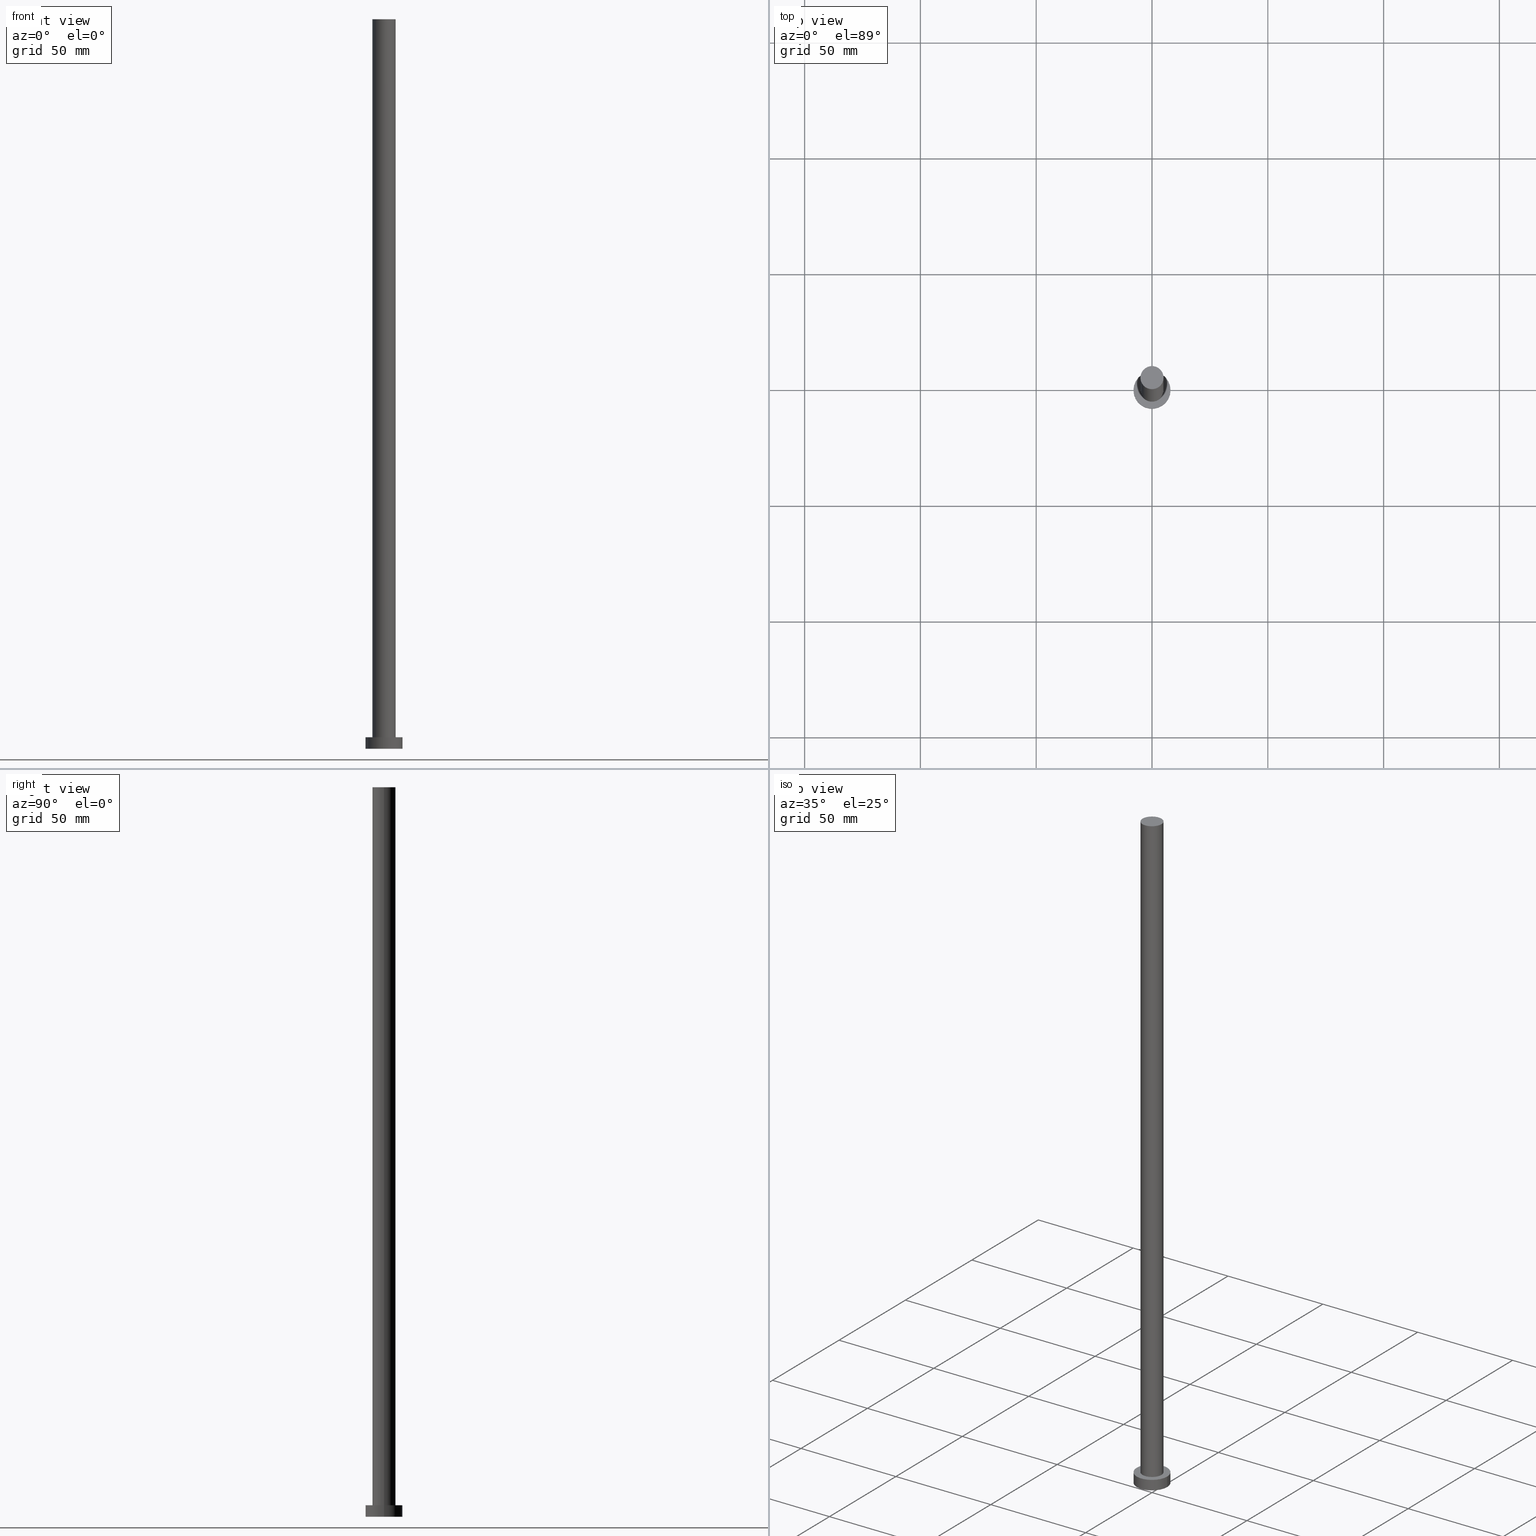
[diagram: canonical four-view strip — front | top / right | iso, engineering-drawing reading convention]
A machine part, canonical four-view strip (front | top / right | iso — engineering-drawing reading convention). The complete STEP part file that produces these views, byte-faithful:
ISO-10303-21;
HEADER;
FILE_DESCRIPTION (( 'STEP AP203' ),
    '1' );
FILE_NAME ('fd16.STEP',
    '2023-02-13T12:06:18',
    ( '' ),
    ( '' ),
    'SwSTEP 2.0',
    'SolidWorks 2019',
    '' );
FILE_SCHEMA (( 'CONFIG_CONTROL_DESIGN' ));
ENDSEC;

DATA;
#1 = PERSON_AND_ORGANIZATION ( #135, #162 ) ;
#2 = EDGE_CURVE ( 'NONE', #86, #115, #82, .T. ) ;
#3 = ORIENTED_EDGE ( 'NONE', *, *, #209, .F. ) ;
#4 = APPLICATION_PROTOCOL_DEFINITION ( 'international standard', 'config_control_design', 1994, #252 ) ;
#5 = APPROVAL_DATE_TIME ( #58, #99 ) ;
#6 = PRODUCT_DEFINITION ( 'NEZN�M�', '', #114, #123 ) ;
#7 = ORIENTED_EDGE ( 'NONE', *, *, #33, .T. ) ;
#8 = LOCAL_TIME ( 13, 6, 18.00000000000000000, #97 ) ;
#9 = ORIENTED_EDGE ( 'NONE', *, *, #235, .F. ) ;
#10 = FACE_BOUND ( 'NONE', #119, .T. ) ;
#11 = ORIENTED_EDGE ( 'NONE', *, *, #180, .T. ) ;
#12 = CC_DESIGN_APPROVAL ( #39, ( #68 ) ) ;
#13 = CYLINDRICAL_SURFACE ( 'NONE', #42, 8.000000000000000000 ) ;
#14 = LINE ( 'NONE', #90, #73 ) ;
#15 = APPROVAL_DATE_TIME ( #214, #39 ) ;
#16 = PRODUCT_RELATED_PRODUCT_CATEGORY ( 'detail', '', ( #230 ) ) ;
#17 = AXIS2_PLACEMENT_3D ( 'NONE', #62, #26, #145 ) ;
#18 = ORIENTED_EDGE ( 'NONE', *, *, #75, .F. ) ;
#19 = DATE_TIME_ROLE ( 'creation_date' ) ;
#20 = ORIENTED_EDGE ( 'NONE', *, *, #2, .T. ) ;
#21 = DATE_AND_TIME ( #238, #8 ) ;
#22 = EDGE_CURVE ( 'NONE', #215, #153, #176, .T. ) ;
#23 = CIRCLE ( 'NONE', #61, 8.000000000000000000 ) ;
#24 = UNCERTAINTY_MEASURE_WITH_UNIT (LENGTH_MEASURE( 1.000000000000000082E-05 ), #129, 'distance_accuracy_value', 'NONE');
#25 = ADVANCED_FACE ( 'NONE', ( #43 ), #244, .T. ) ;
#26 = DIRECTION ( 'NONE',  ( 0.000000000000000000, 0.000000000000000000, 1.000000000000000000 ) ) ;
#27 = APPROVAL_PERSON_ORGANIZATION ( #240, #39, #116 ) ;
#28 = DIRECTION ( 'NONE',  ( -0.000000000000000000, -0.000000000000000000, -1.000000000000000000 ) ) ;
#29 = ADVANCED_BREP_SHAPE_REPRESENTATION ( 'fd16', ( #236, #223 ), #121 ) ;
#30 = DIRECTION ( 'NONE',  ( 1.000000000000000000, 0.000000000000000000, 0.000000000000000000 ) ) ;
#31 = PLANE ( 'NONE',  #233 ) ;
#32 = CARTESIAN_POINT ( 'NONE',  ( 0.000000000000000000, 0.000000000000000000, 5.000000000000000000 ) ) ;
#33 = EDGE_CURVE ( 'NONE', #153, #157, #117, .T. ) ;
#34 = DIRECTION ( 'NONE',  ( -0.000000000000000000, -0.000000000000000000, -1.000000000000000000 ) ) ;
#35 = AXIS2_PLACEMENT_3D ( 'NONE', #113, #190, #131 ) ;
#36 = PERSON_AND_ORGANIZATION ( #135, #162 ) ;
#37 = EDGE_LOOP ( 'NONE', ( #65, #11, #156, #127 ) ) ;
#38 = PERSON_AND_ORGANIZATION ( #135, #162 ) ;
#39 = APPROVAL ( #95, 'NEUR�EN�' ) ;
#40 = DIRECTION ( 'NONE',  ( 0.000000000000000000, 0.000000000000000000, 1.000000000000000000 ) ) ;
#41 = PERSON_AND_ORGANIZATION ( #135, #162 ) ;
#42 = AXIS2_PLACEMENT_3D ( 'NONE', #32, #53, #167 ) ;
#43 = FACE_OUTER_BOUND ( 'NONE', #37, .T. ) ;
#44 = DIRECTION ( 'NONE',  ( -1.000000000000000000, 0.000000000000000000, 0.000000000000000000 ) ) ;
#45 = EDGE_CURVE ( 'NONE', #215, #64, #141, .T. ) ;
#46 = EDGE_LOOP ( 'NONE', ( #57, #134, #100, #7 ) ) ;
#47 = CARTESIAN_POINT ( 'NONE',  ( 0.000000000000000000, 0.000000000000000000, 5.000000000000000000 ) ) ;
#48 = MECHANICAL_CONTEXT ( 'NONE', #146, 'mechanical' ) ;
#49 = AXIS2_PLACEMENT_3D ( 'NONE', #149, #229, #50 ) ;
#50 = DIRECTION ( 'NONE',  ( 1.000000000000000000, 0.000000000000000000, 0.000000000000000000 ) ) ;
#51 = CARTESIAN_POINT ( 'NONE',  ( 0.000000000000000000, 0.000000000000000000, 0.000000000000000000 ) ) ;
#52 = ORIENTED_EDGE ( 'NONE', *, *, #76, .T. ) ;
#53 = DIRECTION ( 'NONE',  ( -0.000000000000000000, -0.000000000000000000, -1.000000000000000000 ) ) ;
#54 = AXIS2_PLACEMENT_3D ( 'NONE', #51, #112, #232 ) ;
#55 = LOCAL_TIME ( 13, 6, 18.00000000000000000, #60 ) ;
#56 = ORIENTED_EDGE ( 'NONE', *, *, #235, .T. ) ;
#57 = ORIENTED_EDGE ( 'NONE', *, *, #180, .F. ) ;
#58 = DATE_AND_TIME ( #101, #205 ) ;
#59 = DIRECTION ( 'NONE',  ( 0.000000000000000000, 0.000000000000000000, 1.000000000000000000 ) ) ;
#60 = COORDINATED_UNIVERSAL_TIME_OFFSET ( 1, 0, .AHEAD. ) ;
#61 = AXIS2_PLACEMENT_3D ( 'NONE', #161, #40, #30 ) ;
#62 = CARTESIAN_POINT ( 'NONE',  ( 0.000000000000000000, 0.000000000000000000, 0.000000000000000000 ) ) ;
#63 = ORIENTED_EDGE ( 'NONE', *, *, #92, .F. ) ;
#64 = VERTEX_POINT ( 'NONE', #126 ) ;
#65 = ORIENTED_EDGE ( 'NONE', *, *, #249, .F. ) ;
#66 = APPLICATION_PROTOCOL_DEFINITION ( 'international standard', 'config_control_design', 1994, #146 ) ;
#67 = DIRECTION ( 'NONE',  ( 0.000000000000000000, 0.000000000000000000, 1.000000000000000000 ) ) ;
#68 = SECURITY_CLASSIFICATION ( '', '', #213 ) ;
#69 = DIRECTION ( 'NONE',  ( 0.000000000000000000, 0.000000000000000000, 1.000000000000000000 ) ) ;
#70 = CARTESIAN_POINT ( 'NONE',  ( 0.000000000000000000, 0.000000000000000000, 315.0000000000000000 ) ) ;
#71 = CARTESIAN_POINT ( 'NONE',  ( 0.000000000000000000, 0.000000000000000000, 0.000000000000000000 ) ) ;
#72 = DATE_AND_TIME ( #177, #216 ) ;
#73 = VECTOR ( 'NONE', #34, 1000.000000000000000 ) ;
#74 = COORDINATED_UNIVERSAL_TIME_OFFSET ( 1, 0, .AHEAD. ) ;
#75 = EDGE_CURVE ( 'NONE', #157, #153, #102, .T. ) ;
#76 = EDGE_CURVE ( 'NONE', #115, #86, #23, .T. ) ;
#77 = PLANE ( 'NONE',  #204 ) ;
#78 = APPROVAL_DATE_TIME ( #72, #85 ) ;
#79 = AXIS2_PLACEMENT_3D ( 'NONE', #172, #69, #188 ) ;
#80 = DATE_TIME_ROLE ( 'classification_date' ) ;
#81 = ORIENTED_EDGE ( 'NONE', *, *, #249, .T. ) ;
#82 = CIRCLE ( 'NONE', #17, 8.000000000000000000 ) ;
#83 = LOCAL_TIME ( 13, 6, 18.00000000000000000, #159 ) ;
#84 = DIRECTION ( 'NONE',  ( 1.000000000000000000, 0.000000000000000000, -0.000000000000000000 ) ) ;
#85 = APPROVAL ( #160, 'NEUR�EN�' ) ;
#86 = VERTEX_POINT ( 'NONE', #184 ) ;
#87 = ORIENTED_EDGE ( 'NONE', *, *, #209, .T. ) ;
#88 = AXIS2_PLACEMENT_3D ( 'NONE', #220, #199, #44 ) ;
#89 = DIRECTION ( 'NONE',  ( 1.000000000000000000, 0.000000000000000000, 0.000000000000000000 ) ) ;
#90 = CARTESIAN_POINT ( 'NONE',  ( 5.000000000000000888, 6.123233995736767268E-16, 315.0000000000000000 ) ) ;
#91 = DIRECTION ( 'NONE',  ( 1.000000000000000000, 0.000000000000000000, -0.000000000000000000 ) ) ;
#92 = EDGE_CURVE ( 'NONE', #194, #86, #166, .T. ) ;
#93 = CARTESIAN_POINT ( 'NONE',  ( -5.000000000000000888, 0.000000000000000000, 315.0000000000000000 ) ) ;
#94 = ADVANCED_FACE ( 'NONE', ( #203 ), #217, .T. ) ;
#95 = APPROVAL_STATUS ( 'not_yet_approved' ) ;
#96 = CIRCLE ( 'NONE', #79, 8.000000000000000000 ) ;
#97 = COORDINATED_UNIVERSAL_TIME_OFFSET ( 1, 0, .AHEAD. ) ;
#98 = DIRECTION ( 'NONE',  ( 0.000000000000000000, 0.000000000000000000, 1.000000000000000000 ) ) ;
#99 = APPROVAL ( #136, 'NEUR�EN�' ) ;
#100 = ORIENTED_EDGE ( 'NONE', *, *, #22, .T. ) ;
#101 = CALENDAR_DATE ( 2023, 13, 2 ) ;
#102 = CIRCLE ( 'NONE', #173, 5.000000000000000888 ) ;
#103 = CC_DESIGN_APPROVAL ( #99, ( #114 ) ) ;
#104 = ADVANCED_FACE ( 'NONE', ( #10, #182 ), #77, .T. ) ;
#105 = CARTESIAN_POINT ( 'NONE',  ( 0.000000000000000000, 0.000000000000000000, 5.000000000000000000 ) ) ;
#106 = AXIS2_PLACEMENT_3D ( 'NONE', #47, #98, #147 ) ;
#107 = DIRECTION ( 'NONE',  ( -0.000000000000000000, -0.000000000000000000, -1.000000000000000000 ) ) ;
#108 = DIRECTION ( 'NONE',  ( -1.000000000000000000, 0.000000000000000000, 0.000000000000000000 ) ) ;
#109 = CARTESIAN_POINT ( 'NONE',  ( 8.000000000000000000, 9.797174393178825657E-16, 5.000000000000000000 ) ) ;
#110 = VECTOR ( 'NONE', #151, 1000.000000000000000 ) ;
#111 = CIRCLE ( 'NONE', #137, 8.000000000000000000 ) ;
#112 = DIRECTION ( 'NONE',  ( 0.000000000000000000, 0.000000000000000000, 1.000000000000000000 ) ) ;
#113 = CARTESIAN_POINT ( 'NONE',  ( 0.000000000000000000, 0.000000000000000000, 315.0000000000000000 ) ) ;
#114 = PRODUCT_DEFINITION_FORMATION_WITH_SPECIFIED_SOURCE ( 'LIBOVOLN�', '', #230, .NOT_KNOWN. ) ;
#115 = VERTEX_POINT ( 'NONE', #124 ) ;
#116 = APPROVAL_ROLE ( '' ) ;
#117 = CIRCLE ( 'NONE', #106, 5.000000000000000888 ) ;
#118 = PERSON_AND_ORGANIZATION ( #135, #162 ) ;
#119 = EDGE_LOOP ( 'NONE', ( #243, #18 ) ) ;
#120 = DATE_AND_TIME ( #195, #83 ) ;
#121 =( GEOMETRIC_REPRESENTATION_CONTEXT ( 3 ) GLOBAL_UNCERTAINTY_ASSIGNED_CONTEXT ( ( #24 ) ) GLOBAL_UNIT_ASSIGNED_CONTEXT ( ( #129, #150, #189 ) ) REPRESENTATION_CONTEXT ( 'NONE', 'WORKASPACE' ) );
#122 = ORIENTED_EDGE ( 'NONE', *, *, #2, .F. ) ;
#123 = DESIGN_CONTEXT ( 'detailed design', #252, 'design' ) ;
#124 = CARTESIAN_POINT ( 'NONE',  ( 8.000000000000000000, 9.797174393178825657E-16, 0.000000000000000000 ) ) ;
#125 = CC_DESIGN_PERSON_AND_ORGANIZATION_ASSIGNMENT ( #1, #191, ( #114 ) ) ;
#126 = CARTESIAN_POINT ( 'NONE',  ( 5.000000000000000888, 6.123233995736767268E-16, 315.0000000000000000 ) ) ;
#127 = ORIENTED_EDGE ( 'NONE', *, *, #22, .F. ) ;
#128 = CARTESIAN_POINT ( 'NONE',  ( -8.000000000000000000, 0.000000000000000000, 5.000000000000000000 ) ) ;
#129 =( LENGTH_UNIT ( ) NAMED_UNIT ( * ) SI_UNIT ( .MILLI., .METRE. ) );
#130 = EDGE_LOOP ( 'NONE', ( #122, #208 ) ) ;
#131 = DIRECTION ( 'NONE',  ( -1.000000000000000000, 0.000000000000000000, 0.000000000000000000 ) ) ;
#132 = CC_DESIGN_PERSON_AND_ORGANIZATION_ASSIGNMENT ( #255, #193, ( #114 ) ) ;
#133 = PERSON_AND_ORGANIZATION_ROLE ( 'design_owner' ) ;
#134 = ORIENTED_EDGE ( 'NONE', *, *, #45, .F. ) ;
#135 = PERSON ( 'NEUR�EN�', 'NEUR�EN�', 'NEUR�EN�', ('NEUR�EN�'), ('NEUR�EN�'), ('NEUR�EN�') ) ;
#136 = APPROVAL_STATUS ( 'not_yet_approved' ) ;
#137 = AXIS2_PLACEMENT_3D ( 'NONE', #210, #67, #89 ) ;
#138 = DIRECTION ( 'NONE',  ( 0.000000000000000000, 0.000000000000000000, 1.000000000000000000 ) ) ;
#139 = ADVANCED_FACE ( 'NONE', ( #165 ), #13, .T. ) ;
#140 = APPROVAL_ROLE ( '' ) ;
#141 = CIRCLE ( 'NONE', #211, 5.000000000000000888 ) ;
#142 = APPROVAL_PERSON_ORGANIZATION ( #38, #99, #218 ) ;
#143 = DIRECTION ( 'NONE',  ( -0.000000000000000000, -0.000000000000000000, -1.000000000000000000 ) ) ;
#144 = EDGE_LOOP ( 'NONE', ( #239, #81 ) ) ;
#145 = DIRECTION ( 'NONE',  ( 1.000000000000000000, 0.000000000000000000, 0.000000000000000000 ) ) ;
#146 = APPLICATION_CONTEXT ( 'configuration controlled 3d designs of mechanical parts and assemblies' ) ;
#147 = DIRECTION ( 'NONE',  ( 1.000000000000000000, 0.000000000000000000, 0.000000000000000000 ) ) ;
#148 = FACE_OUTER_BOUND ( 'NONE', #130, .T. ) ;
#149 = CARTESIAN_POINT ( 'NONE',  ( 0.000000000000000000, 0.000000000000000000, 315.0000000000000000 ) ) ;
#150 =( NAMED_UNIT ( * ) PLANE_ANGLE_UNIT ( ) SI_UNIT ( $, .RADIAN. ) );
#151 = DIRECTION ( 'NONE',  ( -0.000000000000000000, -0.000000000000000000, -1.000000000000000000 ) ) ;
#152 = PRODUCT_DEFINITION_SHAPE ( 'NONE', 'NONE',  #6 ) ;
#153 = VERTEX_POINT ( 'NONE', #251 ) ;
#154 = DIRECTION ( 'NONE',  ( 0.000000000000000000, 0.000000000000000000, 1.000000000000000000 ) ) ;
#155 = ADVANCED_FACE ( 'NONE', ( #148 ), #168, .F. ) ;
#156 = ORIENTED_EDGE ( 'NONE', *, *, #75, .T. ) ;
#157 = VERTEX_POINT ( 'NONE', #250 ) ;
#158 = CARTESIAN_POINT ( 'NONE',  ( 0.000000000000000000, 0.000000000000000000, 5.000000000000000000 ) ) ;
#159 = COORDINATED_UNIVERSAL_TIME_OFFSET ( 1, 0, .AHEAD. ) ;
#160 = APPROVAL_STATUS ( 'not_yet_approved' ) ;
#161 = CARTESIAN_POINT ( 'NONE',  ( 0.000000000000000000, 0.000000000000000000, 0.000000000000000000 ) ) ;
#162 = ORGANIZATION ( 'NEUR�EN�', 'NEUR�EN�', '' ) ;
#163 = EDGE_LOOP ( 'NONE', ( #56, #175 ) ) ;
#164 = CC_DESIGN_DATE_AND_TIME_ASSIGNMENT ( #120, #19, ( #6 ) ) ;
#165 = FACE_OUTER_BOUND ( 'NONE', #192, .T. ) ;
#166 = LINE ( 'NONE', #242, #248 ) ;
#167 = DIRECTION ( 'NONE',  ( -1.000000000000000000, 0.000000000000000000, 0.000000000000000000 ) ) ;
#168 = PLANE ( 'NONE',  #54 ) ;
#169 = DIRECTION ( 'NONE',  ( 0.000000000000000000, 0.000000000000000000, 1.000000000000000000 ) ) ;
#170 = CYLINDRICAL_SURFACE ( 'NONE', #35, 5.000000000000000888 ) ;
#171 = CC_DESIGN_PERSON_AND_ORGANIZATION_ASSIGNMENT ( #41, #174, ( #6 ) ) ;
#172 = CARTESIAN_POINT ( 'NONE',  ( 0.000000000000000000, 0.000000000000000000, 5.000000000000000000 ) ) ;
#173 = AXIS2_PLACEMENT_3D ( 'NONE', #105, #202, #183 ) ;
#174 = PERSON_AND_ORGANIZATION_ROLE ( 'creator' ) ;
#175 = ORIENTED_EDGE ( 'NONE', *, *, #237, .T. ) ;
#176 = LINE ( 'NONE', #221, #227 ) ;
#177 = CALENDAR_DATE ( 2023, 13, 2 ) ;
#178 = CLOSED_SHELL ( 'NONE', ( #25, #94, #139, #104, #155, #185, #200 ) ) ;
#179 = CC_DESIGN_APPROVAL ( #85, ( #6 ) ) ;
#180 = EDGE_CURVE ( 'NONE', #64, #157, #14, .T. ) ;
#181 = AXIS2_PLACEMENT_3D ( 'NONE', #201, #107, #108 ) ;
#182 = FACE_OUTER_BOUND ( 'NONE', #163, .T. ) ;
#183 = DIRECTION ( 'NONE',  ( 1.000000000000000000, 0.000000000000000000, 0.000000000000000000 ) ) ;
#184 = CARTESIAN_POINT ( 'NONE',  ( -8.000000000000000000, 0.000000000000000000, 0.000000000000000000 ) ) ;
#185 = ADVANCED_FACE ( 'NONE', ( #225 ), #170, .T. ) ;
#186 = DIRECTION ( 'NONE',  ( 1.000000000000000000, 0.000000000000000000, 0.000000000000000000 ) ) ;
#187 = CC_DESIGN_SECURITY_CLASSIFICATION ( #68, ( #114 ) ) ;
#188 = DIRECTION ( 'NONE',  ( 1.000000000000000000, 0.000000000000000000, 0.000000000000000000 ) ) ;
#189 =( NAMED_UNIT ( * ) SI_UNIT ( $, .STERADIAN. ) SOLID_ANGLE_UNIT ( ) );
#190 = DIRECTION ( 'NONE',  ( -0.000000000000000000, -0.000000000000000000, -1.000000000000000000 ) ) ;
#191 = PERSON_AND_ORGANIZATION_ROLE ( 'creator' ) ;
#192 = EDGE_LOOP ( 'NONE', ( #3, #9, #253, #20 ) ) ;
#193 = PERSON_AND_ORGANIZATION_ROLE ( 'design_supplier' ) ;
#194 = VERTEX_POINT ( 'NONE', #128 ) ;
#195 = CALENDAR_DATE ( 2023, 13, 2 ) ;
#196 = VERTEX_POINT ( 'NONE', #226 ) ;
#197 = COORDINATED_UNIVERSAL_TIME_OFFSET ( 1, 0, .AHEAD. ) ;
#198 = CC_DESIGN_PERSON_AND_ORGANIZATION_ASSIGNMENT ( #228, #133, ( #230 ) ) ;
#199 = DIRECTION ( 'NONE',  ( -0.000000000000000000, -0.000000000000000000, -1.000000000000000000 ) ) ;
#200 = ADVANCED_FACE ( 'NONE', ( #206 ), #31, .T. ) ;
#201 = CARTESIAN_POINT ( 'NONE',  ( 0.000000000000000000, 0.000000000000000000, 315.0000000000000000 ) ) ;
#202 = DIRECTION ( 'NONE',  ( 0.000000000000000000, 0.000000000000000000, 1.000000000000000000 ) ) ;
#203 = FACE_OUTER_BOUND ( 'NONE', #231, .T. ) ;
#204 = AXIS2_PLACEMENT_3D ( 'NONE', #158, #59, #84 ) ;
#205 = LOCAL_TIME ( 13, 6, 18.00000000000000000, #197 ) ;
#206 = FACE_OUTER_BOUND ( 'NONE', #144, .T. ) ;
#207 = CC_DESIGN_DATE_AND_TIME_ASSIGNMENT ( #21, #80, ( #68 ) ) ;
#208 = ORIENTED_EDGE ( 'NONE', *, *, #76, .F. ) ;
#209 = EDGE_CURVE ( 'NONE', #196, #115, #247, .T. ) ;
#210 = CARTESIAN_POINT ( 'NONE',  ( 0.000000000000000000, 0.000000000000000000, 5.000000000000000000 ) ) ;
#211 = AXIS2_PLACEMENT_3D ( 'NONE', #224, #138, #245 ) ;
#212 = PERSON_AND_ORGANIZATION_ROLE ( 'classification_officer' ) ;
#213 = SECURITY_CLASSIFICATION_LEVEL ( 'unclassified' ) ;
#214 = DATE_AND_TIME ( #241, #55 ) ;
#215 = VERTEX_POINT ( 'NONE', #93 ) ;
#216 = LOCAL_TIME ( 13, 6, 18.00000000000000000, #74 ) ;
#217 = CYLINDRICAL_SURFACE ( 'NONE', #88, 8.000000000000000000 ) ;
#218 = APPROVAL_ROLE ( '' ) ;
#219 = CIRCLE ( 'NONE', #49, 5.000000000000000888 ) ;
#220 = CARTESIAN_POINT ( 'NONE',  ( 0.000000000000000000, 0.000000000000000000, 5.000000000000000000 ) ) ;
#221 = CARTESIAN_POINT ( 'NONE',  ( -5.000000000000000888, 0.000000000000000000, 315.0000000000000000 ) ) ;
#222 = ORIENTED_EDGE ( 'NONE', *, *, #237, .F. ) ;
#223 = AXIS2_PLACEMENT_3D ( 'NONE', #71, #154, #186 ) ;
#224 = CARTESIAN_POINT ( 'NONE',  ( 0.000000000000000000, 0.000000000000000000, 315.0000000000000000 ) ) ;
#225 = FACE_OUTER_BOUND ( 'NONE', #46, .T. ) ;
#226 = CARTESIAN_POINT ( 'NONE',  ( 8.000000000000000000, 9.797174393178825657E-16, 5.000000000000000000 ) ) ;
#227 = VECTOR ( 'NONE', #28, 1000.000000000000000 ) ;
#228 = PERSON_AND_ORGANIZATION ( #135, #162 ) ;
#229 = DIRECTION ( 'NONE',  ( 0.000000000000000000, 0.000000000000000000, 1.000000000000000000 ) ) ;
#230 = PRODUCT ( 'fd16', 'fd16', '', ( #48 ) ) ;
#231 = EDGE_LOOP ( 'NONE', ( #222, #87, #52, #63 ) ) ;
#232 = DIRECTION ( 'NONE',  ( 1.000000000000000000, 0.000000000000000000, -0.000000000000000000 ) ) ;
#233 = AXIS2_PLACEMENT_3D ( 'NONE', #70, #169, #91 ) ;
#234 = SHAPE_DEFINITION_REPRESENTATION ( #152, #29 ) ;
#235 = EDGE_CURVE ( 'NONE', #194, #196, #96, .T. ) ;
#236 = MANIFOLD_SOLID_BREP ( 'P�idat vysunut�m3', #178 ) ;
#237 = EDGE_CURVE ( 'NONE', #196, #194, #111, .T. ) ;
#238 = CALENDAR_DATE ( 2023, 13, 2 ) ;
#239 = ORIENTED_EDGE ( 'NONE', *, *, #45, .T. ) ;
#240 = PERSON_AND_ORGANIZATION ( #135, #162 ) ;
#241 = CALENDAR_DATE ( 2023, 13, 2 ) ;
#242 = CARTESIAN_POINT ( 'NONE',  ( -8.000000000000000000, 0.000000000000000000, 5.000000000000000000 ) ) ;
#243 = ORIENTED_EDGE ( 'NONE', *, *, #33, .F. ) ;
#244 = CYLINDRICAL_SURFACE ( 'NONE', #181, 5.000000000000000888 ) ;
#245 = DIRECTION ( 'NONE',  ( 1.000000000000000000, 0.000000000000000000, 0.000000000000000000 ) ) ;
#246 = CC_DESIGN_PERSON_AND_ORGANIZATION_ASSIGNMENT ( #36, #212, ( #68 ) ) ;
#247 = LINE ( 'NONE', #109, #110 ) ;
#248 = VECTOR ( 'NONE', #143, 1000.000000000000000 ) ;
#249 = EDGE_CURVE ( 'NONE', #64, #215, #219, .T. ) ;
#250 = CARTESIAN_POINT ( 'NONE',  ( 5.000000000000000888, 6.123233995736767268E-16, 5.000000000000000000 ) ) ;
#251 = CARTESIAN_POINT ( 'NONE',  ( -5.000000000000000888, 0.000000000000000000, 5.000000000000000000 ) ) ;
#252 = APPLICATION_CONTEXT ( 'configuration controlled 3d designs of mechanical parts and assemblies' ) ;
#253 = ORIENTED_EDGE ( 'NONE', *, *, #92, .T. ) ;
#254 = APPROVAL_PERSON_ORGANIZATION ( #118, #85, #140 ) ;
#255 = PERSON_AND_ORGANIZATION ( #135, #162 ) ;
ENDSEC;
END-ISO-10303-21;
